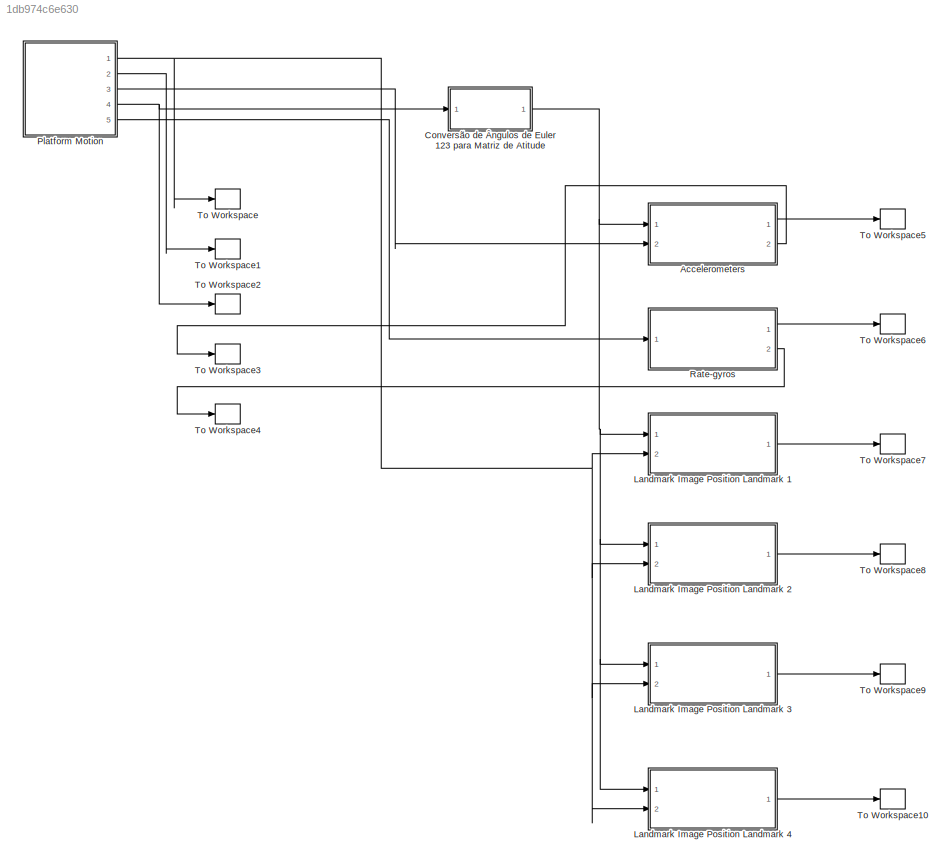
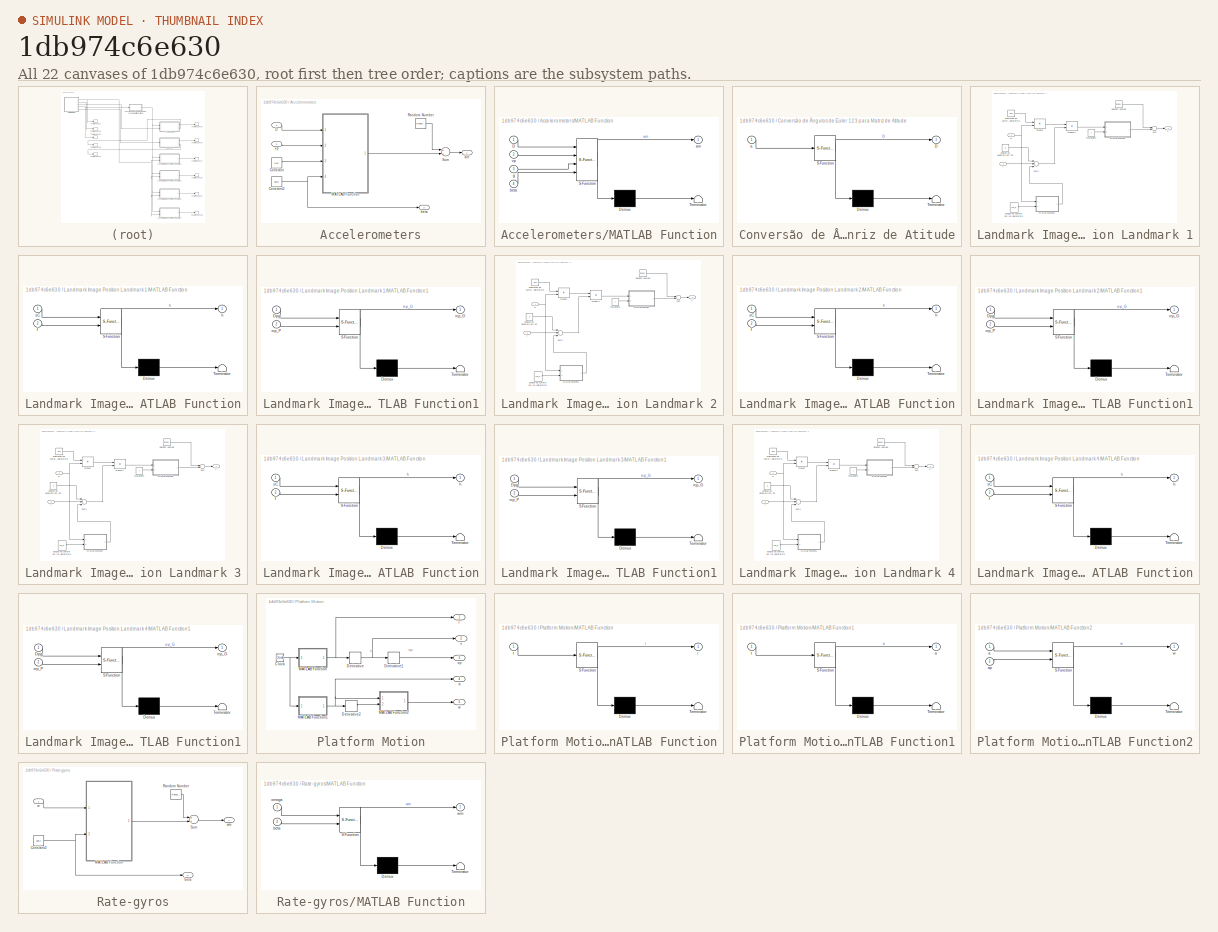
[diagram: thumbnail index - all 22 canvases of the model, root first then tree order]
MODEL slx_1db974c6e630
KIND model
CONFIG AbsTol = auto
CONFIG FixedStep = auto
CONFIG InitFcn = c = clock;\nseed_offset = c(6);\nseed_offset = floor(seed_offset);
CONFIG MaxStep = 1e-1
CONFIG MinStep = auto
CONFIG RelTol = 1e-3
CONFIG SampleTimeConstraint = Unconstrained
CONFIG Solver = ode45
CONFIG SolverMode = Auto
CONFIG SolverName = ode45
CONFIG StartTime = 0.0
CONFIG StopTime = tf
BLOCK [SubSystem] Accelerometers
  Ports = [2, 2]
  RequestExecContextInheritance = off
BLOCK [Constant] Accelerometers/Constant
  Value = 9.81
BLOCK [Constant] Accelerometers/Constant2
  Value = beta
BLOCK [Inport] Accelerometers/D
  IconDisplay = Port number
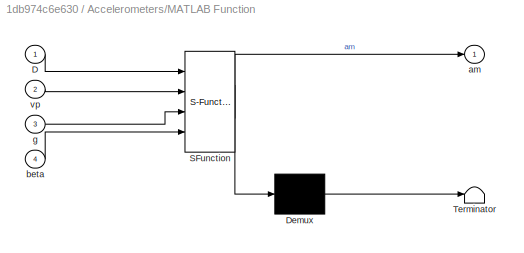
BLOCK [SubSystem] Accelerometers/MATLAB Function
  ErrorFcn = Stateflow.Translate.translate
  PermitHierarchicalResolution = ExplicitOnly
  Ports = [4, 1]
  RequestExecContextInheritance = off
  SFBlockType = MATLAB Function
  TreatAsAtomicUnit = on
BLOCK [Demux] Accelerometers/MATLAB Function/ Demux 
  Outputs = 1
  Ports = [1, 1]
BLOCK [S-Function] Accelerometers/MATLAB Function/ SFunction 
  EnableBusSupport = on
  FunctionName = sf_sfun
  PortCounts = [4 2]
  Ports = [4, 2]
  Tag = Stateflow S-Function plataforma_ep3 10
BLOCK [Terminator] Accelerometers/MATLAB Function/ Terminator 
BLOCK [Inport] Accelerometers/MATLAB Function/D
  IconDisplay = Port number
BLOCK [Outport] Accelerometers/MATLAB Function/am
  IconDisplay = Port number
BLOCK [Inport] Accelerometers/MATLAB Function/beta
  IconDisplay = Port number
  Port = 4
BLOCK [Inport] Accelerometers/MATLAB Function/g
  IconDisplay = Port number
  Port = 3
BLOCK [Inport] Accelerometers/MATLAB Function/vp
  IconDisplay = Port number
  Port = 2
BLOCK [RandomNumber] Accelerometers/Random Number
  Mean = [0 0 0]'
  Seed = seed
  Variance = [sigma^2  sigma^2  sigma^2]'
BLOCK [Sum] Accelerometers/Sum
  InputSameDT = off
  OutDataTypeStr = Inherit: Inherit via internal rule
  Ports = [2, 1]
  SaturateOnIntegerOverflow = off
BLOCK [Outport] Accelerometers/am
  IconDisplay = Port number
BLOCK [Outport] Accelerometers/beta
  IconDisplay = Port number
  Port = 2
BLOCK [Inport] Accelerometers/vp
  IconDisplay = Port number
  Port = 2
BLOCK [SubSystem] Conversão de Ângulos de Euler 123 para Matriz de Atitude
  ErrorFcn = Stateflow.Translate.translate
  PermitHierarchicalResolution = ExplicitOnly
  Ports = [1, 1]
  RequestExecContextInheritance = off
  SFBlockType = MATLAB Function
  TreatAsAtomicUnit = on
BLOCK [Demux] Conversão de Ângulos de Euler 123 para Matriz de Atitude/ Demux 
  Outputs = 1
  Ports = [1, 1]
BLOCK [S-Function] Conversão de Ângulos de Euler 123 para Matriz de Atitude/ SFunction 
  EnableBusSupport = on
  FunctionName = sf_sfun
  PortCounts = [1 2]
  Ports = [1, 2]
  Tag = Stateflow S-Function plataforma_ep3 15
BLOCK [Terminator] Conversão de Ângulos de Euler 123 para Matriz de Atitude/ Terminator 
BLOCK [Outport] Conversão de Ângulos de Euler 123 para Matriz de Atitude/D
  IconDisplay = Port number
BLOCK [Inport] Conversão de Ângulos de Euler 123 para Matriz de Atitude/a
  IconDisplay = Port number
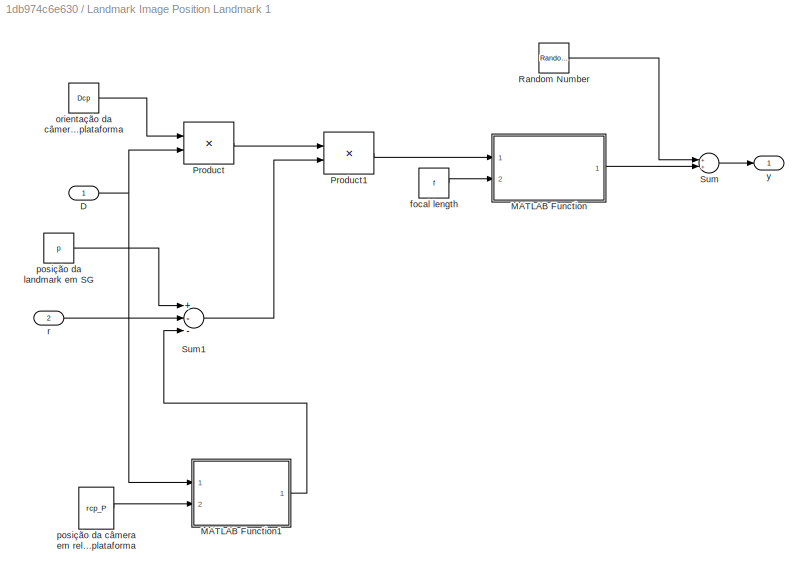
BLOCK [SubSystem] Landmark Image Position Landmark 1
  Ports = [2, 1]
  RequestExecContextInheritance = off
BLOCK [Inport] Landmark Image Position Landmark 1/D
  IconDisplay = Port number
BLOCK [SubSystem] Landmark Image Position Landmark 1/MATLAB Function
  ErrorFcn = Stateflow.Translate.translate
  PermitHierarchicalResolution = ExplicitOnly
  Ports = [2, 1]
  RequestExecContextInheritance = off
  SFBlockType = MATLAB Function
  TreatAsAtomicUnit = on
BLOCK [Demux] Landmark Image Position Landmark 1/MATLAB Function/ Demux 
  Outputs = 1
  Ports = [1, 1]
BLOCK [S-Function] Landmark Image Position Landmark 1/MATLAB Function/ SFunction 
  EnableBusSupport = on
  FunctionName = sf_sfun
  PortCounts = [2 2]
  Ports = [2, 2]
  Tag = Stateflow S-Function plataforma_ep3 12
BLOCK [Terminator] Landmark Image Position Landmark 1/MATLAB Function/ Terminator 
BLOCK [Inport] Landmark Image Position Landmark 1/MATLAB Function/f
  IconDisplay = Port number
  Port = 2
BLOCK [Outport] Landmark Image Position Landmark 1/MATLAB Function/h
  IconDisplay = Port number
BLOCK [Inport] Landmark Image Position Landmark 1/MATLAB Function/sC
  IconDisplay = Port number
BLOCK [SubSystem] Landmark Image Position Landmark 1/MATLAB Function1
  ErrorFcn = Stateflow.Translate.translate
  PermitHierarchicalResolution = ExplicitOnly
  Ports = [2, 1]
  RequestExecContextInheritance = off
  SFBlockType = MATLAB Function
  TreatAsAtomicUnit = on
BLOCK [Demux] Landmark Image Position Landmark 1/MATLAB Function1/ Demux 
  Outputs = 1
  Ports = [1, 1]
BLOCK [S-Function] Landmark Image Position Landmark 1/MATLAB Function1/ SFunction 
  EnableBusSupport = on
  FunctionName = sf_sfun
  PortCounts = [2 2]
  Ports = [2, 2]
  Tag = Stateflow S-Function plataforma_ep3 1
BLOCK [Terminator] Landmark Image Position Landmark 1/MATLAB Function1/ Terminator 
BLOCK [Inport] Landmark Image Position Landmark 1/MATLAB Function1/Dpg
  IconDisplay = Port number
BLOCK [Outport] Landmark Image Position Landmark 1/MATLAB Function1/rcp_G
  IconDisplay = Port number
BLOCK [Inport] Landmark Image Position Landmark 1/MATLAB Function1/rcp_P
  IconDisplay = Port number
  Port = 2
BLOCK [Product] Landmark Image Position Landmark 1/Product
  InputSameDT = off
  Multiplication = Matrix(*)
  OutDataTypeStr = Inherit: Inherit via internal rule
  Ports = [2, 1]
  RndMeth = Floor
  SaturateOnIntegerOverflow = off
BLOCK [Product] Landmark Image Position Landmark 1/Product1
  InputSameDT = off
  Multiplication = Matrix(*)
  OutDataTypeStr = Inherit: Inherit via internal rule
  Ports = [2, 1]
  RndMeth = Floor
  SaturateOnIntegerOverflow = off
BLOCK [RandomNumber] Landmark Image Position Landmark 1/Random Number
  Mean = [0 0]'
  Seed = seed
  Variance = [sigma^2 sigma^2]'
BLOCK [Sum] Landmark Image Position Landmark 1/Sum
  InputSameDT = off
  OutDataTypeStr = Inherit: Inherit via internal rule
  Ports = [2, 1]
  SaturateOnIntegerOverflow = off
BLOCK [Sum] Landmark Image Position Landmark 1/Sum1
  InputSameDT = off
  Inputs = +--
  OutDataTypeStr = Inherit: Inherit via internal rule
  Ports = [3, 1]
  SaturateOnIntegerOverflow = off
BLOCK [Constant] Landmark Image Position Landmark 1/focal length
  Value = f
BLOCK [Constant] Landmark Image Position Landmark 1/orientação da câmera em relação à plataforma
  Value = Dcp
BLOCK [Constant] Landmark Image Position Landmark 1/posição da câmera em relação à plataforma
  Value = rcp_P
BLOCK [Constant] Landmark Image Position Landmark 1/posição da landmark em SG
  Value = p
BLOCK [Inport] Landmark Image Position Landmark 1/r
  IconDisplay = Port number
  Port = 2
BLOCK [Outport] Landmark Image Position Landmark 1/y
  IconDisplay = Port number
BLOCK [SubSystem] Landmark Image Position Landmark 2
  Ports = [2, 1]
  RequestExecContextInheritance = off
BLOCK [Inport] Landmark Image Position Landmark 2/D
  IconDisplay = Port number
BLOCK [SubSystem] Landmark Image Position Landmark 2/MATLAB Function
  ErrorFcn = Stateflow.Translate.translate
  PermitHierarchicalResolution = ExplicitOnly
  Ports = [2, 1]
  RequestExecContextInheritance = off
  SFBlockType = MATLAB Function
  TreatAsAtomicUnit = on
BLOCK [Demux] Landmark Image Position Landmark 2/MATLAB Function/ Demux 
  Outputs = 1
  Ports = [1, 1]
BLOCK [S-Function] Landmark Image Position Landmark 2/MATLAB Function/ SFunction 
  EnableBusSupport = on
  FunctionName = sf_sfun
  PortCounts = [2 2]
  Ports = [2, 2]
  Tag = Stateflow S-Function plataforma_ep3 3
BLOCK [Terminator] Landmark Image Position Landmark 2/MATLAB Function/ Terminator 
BLOCK [Inport] Landmark Image Position Landmark 2/MATLAB Function/f
  IconDisplay = Port number
  Port = 2
BLOCK [Outport] Landmark Image Position Landmark 2/MATLAB Function/h
  IconDisplay = Port number
BLOCK [Inport] Landmark Image Position Landmark 2/MATLAB Function/sC
  IconDisplay = Port number
BLOCK [SubSystem] Landmark Image Position Landmark 2/MATLAB Function1
  ErrorFcn = Stateflow.Translate.translate
  PermitHierarchicalResolution = ExplicitOnly
  Ports = [2, 1]
  RequestExecContextInheritance = off
  SFBlockType = MATLAB Function
  TreatAsAtomicUnit = on
BLOCK [Demux] Landmark Image Position Landmark 2/MATLAB Function1/ Demux 
  Outputs = 1
  Ports = [1, 1]
BLOCK [S-Function] Landmark Image Position Landmark 2/MATLAB Function1/ SFunction 
  EnableBusSupport = on
  FunctionName = sf_sfun
  PortCounts = [2 2]
  Ports = [2, 2]
  Tag = Stateflow S-Function plataforma_ep3 7
BLOCK [Terminator] Landmark Image Position Landmark 2/MATLAB Function1/ Terminator 
BLOCK [Inport] Landmark Image Position Landmark 2/MATLAB Function1/Dpg
  IconDisplay = Port number
BLOCK [Outport] Landmark Image Position Landmark 2/MATLAB Function1/rcp_G
  IconDisplay = Port number
BLOCK [Inport] Landmark Image Position Landmark 2/MATLAB Function1/rcp_P
  IconDisplay = Port number
  Port = 2
BLOCK [Product] Landmark Image Position Landmark 2/Product
  InputSameDT = off
  Multiplication = Matrix(*)
  OutDataTypeStr = Inherit: Inherit via internal rule
  Ports = [2, 1]
  RndMeth = Floor
  SaturateOnIntegerOverflow = off
BLOCK [Product] Landmark Image Position Landmark 2/Product1
  InputSameDT = off
  Multiplication = Matrix(*)
  OutDataTypeStr = Inherit: Inherit via internal rule
  Ports = [2, 1]
  RndMeth = Floor
  SaturateOnIntegerOverflow = off
BLOCK [RandomNumber] Landmark Image Position Landmark 2/Random Number
  Mean = [0 0]'
  Seed = seed
  Variance = [sigma^2 sigma^2]'
BLOCK [Sum] Landmark Image Position Landmark 2/Sum
  InputSameDT = off
  OutDataTypeStr = Inherit: Inherit via internal rule
  Ports = [2, 1]
  SaturateOnIntegerOverflow = off
BLOCK [Sum] Landmark Image Position Landmark 2/Sum1
  InputSameDT = off
  Inputs = +--
  OutDataTypeStr = Inherit: Inherit via internal rule
  Ports = [3, 1]
  SaturateOnIntegerOverflow = off
BLOCK [Constant] Landmark Image Position Landmark 2/focal length
  Value = f
BLOCK [Constant] Landmark Image Position Landmark 2/orientação da câmera em relação à plataforma
  Value = Dcp
BLOCK [Constant] Landmark Image Position Landmark 2/posição da câmera em relação à plataforma
  Value = rcp_P
BLOCK [Constant] Landmark Image Position Landmark 2/posição da landmark em SG
  Value = p
BLOCK [Inport] Landmark Image Position Landmark 2/r
  IconDisplay = Port number
  Port = 2
BLOCK [Outport] Landmark Image Position Landmark 2/y
  IconDisplay = Port number
BLOCK [SubSystem] Landmark Image Position Landmark 3
  Ports = [2, 1]
  RequestExecContextInheritance = off
BLOCK [Inport] Landmark Image Position Landmark 3/D
  IconDisplay = Port number
BLOCK [SubSystem] Landmark Image Position Landmark 3/MATLAB Function
  ErrorFcn = Stateflow.Translate.translate
  PermitHierarchicalResolution = ExplicitOnly
  Ports = [2, 1]
  RequestExecContextInheritance = off
  SFBlockType = MATLAB Function
  TreatAsAtomicUnit = on
BLOCK [Demux] Landmark Image Position Landmark 3/MATLAB Function/ Demux 
  Outputs = 1
  Ports = [1, 1]
BLOCK [S-Function] Landmark Image Position Landmark 3/MATLAB Function/ SFunction 
  EnableBusSupport = on
  FunctionName = sf_sfun
  PortCounts = [2 2]
  Ports = [2, 2]
  Tag = Stateflow S-Function plataforma_ep3 2
BLOCK [Terminator] Landmark Image Position Landmark 3/MATLAB Function/ Terminator 
BLOCK [Inport] Landmark Image Position Landmark 3/MATLAB Function/f
  IconDisplay = Port number
  Port = 2
BLOCK [Outport] Landmark Image Position Landmark 3/MATLAB Function/h
  IconDisplay = Port number
BLOCK [Inport] Landmark Image Position Landmark 3/MATLAB Function/sC
  IconDisplay = Port number
BLOCK [SubSystem] Landmark Image Position Landmark 3/MATLAB Function1
  ErrorFcn = Stateflow.Translate.translate
  PermitHierarchicalResolution = ExplicitOnly
  Ports = [2, 1]
  RequestExecContextInheritance = off
  SFBlockType = MATLAB Function
  TreatAsAtomicUnit = on
BLOCK [Demux] Landmark Image Position Landmark 3/MATLAB Function1/ Demux 
  Outputs = 1
  Ports = [1, 1]
BLOCK [S-Function] Landmark Image Position Landmark 3/MATLAB Function1/ SFunction 
  EnableBusSupport = on
  FunctionName = sf_sfun
  PortCounts = [2 2]
  Ports = [2, 2]
  Tag = Stateflow S-Function plataforma_ep3 9
BLOCK [Terminator] Landmark Image Position Landmark 3/MATLAB Function1/ Terminator 
BLOCK [Inport] Landmark Image Position Landmark 3/MATLAB Function1/Dpg
  IconDisplay = Port number
BLOCK [Outport] Landmark Image Position Landmark 3/MATLAB Function1/rcp_G
  IconDisplay = Port number
BLOCK [Inport] Landmark Image Position Landmark 3/MATLAB Function1/rcp_P
  IconDisplay = Port number
  Port = 2
BLOCK [Product] Landmark Image Position Landmark 3/Product
  InputSameDT = off
  Multiplication = Matrix(*)
  OutDataTypeStr = Inherit: Inherit via internal rule
  Ports = [2, 1]
  RndMeth = Floor
  SaturateOnIntegerOverflow = off
BLOCK [Product] Landmark Image Position Landmark 3/Product1
  InputSameDT = off
  Multiplication = Matrix(*)
  OutDataTypeStr = Inherit: Inherit via internal rule
  Ports = [2, 1]
  RndMeth = Floor
  SaturateOnIntegerOverflow = off
BLOCK [RandomNumber] Landmark Image Position Landmark 3/Random Number
  Mean = [0 0]'
  Seed = seed
  Variance = [sigma^2 sigma^2]'
BLOCK [Sum] Landmark Image Position Landmark 3/Sum
  InputSameDT = off
  OutDataTypeStr = Inherit: Inherit via internal rule
  Ports = [2, 1]
  SaturateOnIntegerOverflow = off
BLOCK [Sum] Landmark Image Position Landmark 3/Sum1
  InputSameDT = off
  Inputs = +--
  OutDataTypeStr = Inherit: Inherit via internal rule
  Ports = [3, 1]
  SaturateOnIntegerOverflow = off
BLOCK [Constant] Landmark Image Position Landmark 3/focal length
  Value = f
BLOCK [Constant] Landmark Image Position Landmark 3/orientação da câmera em relação à plataforma
  Value = Dcp
BLOCK [Constant] Landmark Image Position Landmark 3/posição da câmera em relação à plataforma
  Value = rcp_P
BLOCK [Constant] Landmark Image Position Landmark 3/posição da landmark em SG
  Value = p
BLOCK [Inport] Landmark Image Position Landmark 3/r
  IconDisplay = Port number
  Port = 2
BLOCK [Outport] Landmark Image Position Landmark 3/y
  IconDisplay = Port number
BLOCK [SubSystem] Landmark Image Position Landmark 4
  Ports = [2, 1]
  RequestExecContextInheritance = off
BLOCK [Inport] Landmark Image Position Landmark 4/D
  IconDisplay = Port number
BLOCK [SubSystem] Landmark Image Position Landmark 4/MATLAB Function
  ErrorFcn = Stateflow.Translate.translate
  PermitHierarchicalResolution = ExplicitOnly
  Ports = [2, 1]
  RequestExecContextInheritance = off
  SFBlockType = MATLAB Function
  TreatAsAtomicUnit = on
BLOCK [Demux] Landmark Image Position Landmark 4/MATLAB Function/ Demux 
  Outputs = 1
  Ports = [1, 1]
BLOCK [S-Function] Landmark Image Position Landmark 4/MATLAB Function/ SFunction 
  EnableBusSupport = on
  FunctionName = sf_sfun
  PortCounts = [2 2]
  Ports = [2, 2]
  Tag = Stateflow S-Function plataforma_ep3 13
BLOCK [Terminator] Landmark Image Position Landmark 4/MATLAB Function/ Terminator 
BLOCK [Inport] Landmark Image Position Landmark 4/MATLAB Function/f
  IconDisplay = Port number
  Port = 2
BLOCK [Outport] Landmark Image Position Landmark 4/MATLAB Function/h
  IconDisplay = Port number
BLOCK [Inport] Landmark Image Position Landmark 4/MATLAB Function/sC
  IconDisplay = Port number
BLOCK [SubSystem] Landmark Image Position Landmark 4/MATLAB Function1
  ErrorFcn = Stateflow.Translate.translate
  PermitHierarchicalResolution = ExplicitOnly
  Ports = [2, 1]
  RequestExecContextInheritance = off
  SFBlockType = MATLAB Function
  TreatAsAtomicUnit = on
BLOCK [Demux] Landmark Image Position Landmark 4/MATLAB Function1/ Demux 
  Outputs = 1
  Ports = [1, 1]
BLOCK [S-Function] Landmark Image Position Landmark 4/MATLAB Function1/ SFunction 
  EnableBusSupport = on
  FunctionName = sf_sfun
  PortCounts = [2 2]
  Ports = [2, 2]
  Tag = Stateflow S-Function plataforma_ep3 14
BLOCK [Terminator] Landmark Image Position Landmark 4/MATLAB Function1/ Terminator 
BLOCK [Inport] Landmark Image Position Landmark 4/MATLAB Function1/Dpg
  IconDisplay = Port number
BLOCK [Outport] Landmark Image Position Landmark 4/MATLAB Function1/rcp_G
  IconDisplay = Port number
BLOCK [Inport] Landmark Image Position Landmark 4/MATLAB Function1/rcp_P
  IconDisplay = Port number
  Port = 2
BLOCK [Product] Landmark Image Position Landmark 4/Product
  InputSameDT = off
  Multiplication = Matrix(*)
  OutDataTypeStr = Inherit: Inherit via internal rule
  Ports = [2, 1]
  RndMeth = Floor
  SaturateOnIntegerOverflow = off
BLOCK [Product] Landmark Image Position Landmark 4/Product1
  InputSameDT = off
  Multiplication = Matrix(*)
  OutDataTypeStr = Inherit: Inherit via internal rule
  Ports = [2, 1]
  RndMeth = Floor
  SaturateOnIntegerOverflow = off
BLOCK [RandomNumber] Landmark Image Position Landmark 4/Random Number
  Mean = [0 0]'
  Seed = seed
  Variance = [sigma^2 sigma^2]'
BLOCK [Sum] Landmark Image Position Landmark 4/Sum
  InputSameDT = off
  OutDataTypeStr = Inherit: Inherit via internal rule
  Ports = [2, 1]
  SaturateOnIntegerOverflow = off
BLOCK [Sum] Landmark Image Position Landmark 4/Sum1
  InputSameDT = off
  Inputs = +--
  OutDataTypeStr = Inherit: Inherit via internal rule
  Ports = [3, 1]
  SaturateOnIntegerOverflow = off
BLOCK [Constant] Landmark Image Position Landmark 4/focal length
  Value = f
BLOCK [Constant] Landmark Image Position Landmark 4/orientação da câmera em relação à plataforma
  Value = Dcp
BLOCK [Constant] Landmark Image Position Landmark 4/posição da câmera em relação à plataforma
  Value = rcp_P
BLOCK [Constant] Landmark Image Position Landmark 4/posição da landmark em SG
  Value = p
BLOCK [Inport] Landmark Image Position Landmark 4/r
  IconDisplay = Port number
  Port = 2
BLOCK [Outport] Landmark Image Position Landmark 4/y
  IconDisplay = Port number
BLOCK [SubSystem] Platform Motion
  Ports = [0, 5]
  RequestExecContextInheritance = off
BLOCK [Clock] Platform Motion/Clock
BLOCK [Derivative] Platform Motion/Derivative
BLOCK [Derivative] Platform Motion/Derivative1
BLOCK [Derivative] Platform Motion/Derivative2
BLOCK [SubSystem] Platform Motion/MATLAB Function
  ErrorFcn = Stateflow.Translate.translate
  PermitHierarchicalResolution = ExplicitOnly
  Ports = [1, 1]
  RequestExecContextInheritance = off
  SFBlockType = MATLAB Function
  TreatAsAtomicUnit = on
BLOCK [Demux] Platform Motion/MATLAB Function/ Demux 
  Outputs = 1
  Ports = [1, 1]
BLOCK [S-Function] Platform Motion/MATLAB Function/ SFunction 
  EnableBusSupport = on
  FunctionName = sf_sfun
  PortCounts = [1 2]
  Ports = [1, 2]
  Tag = Stateflow S-Function plataforma_ep3 4
BLOCK [Terminator] Platform Motion/MATLAB Function/ Terminator 
BLOCK [Outport] Platform Motion/MATLAB Function/r
  IconDisplay = Port number
BLOCK [Inport] Platform Motion/MATLAB Function/t
  IconDisplay = Port number
BLOCK [SubSystem] Platform Motion/MATLAB Function1
  ErrorFcn = Stateflow.Translate.translate
  PermitHierarchicalResolution = ExplicitOnly
  Ports = [1, 1]
  RequestExecContextInheritance = off
  SFBlockType = MATLAB Function
  TreatAsAtomicUnit = on
BLOCK [Demux] Platform Motion/MATLAB Function1/ Demux 
  Outputs = 1
  Ports = [1, 1]
BLOCK [S-Function] Platform Motion/MATLAB Function1/ SFunction 
  EnableBusSupport = on
  FunctionName = sf_sfun
  PortCounts = [1 2]
  Ports = [1, 2]
  Tag = Stateflow S-Function plataforma_ep3 5
BLOCK [Terminator] Platform Motion/MATLAB Function1/ Terminator 
BLOCK [Outport] Platform Motion/MATLAB Function1/a
  IconDisplay = Port number
BLOCK [Inport] Platform Motion/MATLAB Function1/t
  IconDisplay = Port number
BLOCK [SubSystem] Platform Motion/MATLAB Function2
  ErrorFcn = Stateflow.Translate.translate
  PermitHierarchicalResolution = ExplicitOnly
  Ports = [2, 1]
  RequestExecContextInheritance = off
  SFBlockType = MATLAB Function
  TreatAsAtomicUnit = on
BLOCK [Demux] Platform Motion/MATLAB Function2/ Demux 
  Outputs = 1
  Ports = [1, 1]
BLOCK [S-Function] Platform Motion/MATLAB Function2/ SFunction 
  EnableBusSupport = on
  FunctionName = sf_sfun
  PortCounts = [2 2]
  Ports = [2, 2]
  Tag = Stateflow S-Function plataforma_ep3 8
BLOCK [Terminator] Platform Motion/MATLAB Function2/ Terminator 
BLOCK [Inport] Platform Motion/MATLAB Function2/a
  IconDisplay = Port number
BLOCK [Inport] Platform Motion/MATLAB Function2/ap
  IconDisplay = Port number
  Port = 2
BLOCK [Outport] Platform Motion/MATLAB Function2/w
  IconDisplay = Port number
BLOCK [Outport] Platform Motion/a
  IconDisplay = Port number
  Port = 4
BLOCK [Outport] Platform Motion/r
  IconDisplay = Port number
BLOCK [Outport] Platform Motion/v
  IconDisplay = Port number
  Port = 2
BLOCK [Outport] Platform Motion/vp
  IconDisplay = Port number
  Port = 3
BLOCK [Outport] Platform Motion/w
  IconDisplay = Port number
  Port = 5
BLOCK [SubSystem] Rate-gyros
  Ports = [1, 2]
  RequestExecContextInheritance = off
BLOCK [Constant] Rate-gyros/Constant2
  Value = beta
BLOCK [SubSystem] Rate-gyros/MATLAB Function
  ErrorFcn = Stateflow.Translate.translate
  PermitHierarchicalResolution = ExplicitOnly
  Ports = [2, 1]
  RequestExecContextInheritance = off
  SFBlockType = MATLAB Function
  TreatAsAtomicUnit = on
BLOCK [Demux] Rate-gyros/MATLAB Function/ Demux 
  Outputs = 1
  Ports = [1, 1]
BLOCK [S-Function] Rate-gyros/MATLAB Function/ SFunction 
  EnableBusSupport = on
  FunctionName = sf_sfun
  PortCounts = [2 2]
  Ports = [2, 2]
  Tag = Stateflow S-Function plataforma_ep3 11
BLOCK [Terminator] Rate-gyros/MATLAB Function/ Terminator 
BLOCK [Inport] Rate-gyros/MATLAB Function/beta
  IconDisplay = Port number
  Port = 2
BLOCK [Inport] Rate-gyros/MATLAB Function/omega
  IconDisplay = Port number
BLOCK [Outport] Rate-gyros/MATLAB Function/wm
  IconDisplay = Port number
BLOCK [RandomNumber] Rate-gyros/Random Number
  Mean = [0 0 0]'
  Seed = seed
  Variance = [sigma^2  sigma^2  sigma^2]'
BLOCK [Sum] Rate-gyros/Sum
  InputSameDT = off
  OutDataTypeStr = Inherit: Inherit via internal rule
  Ports = [2, 1]
  SaturateOnIntegerOverflow = off
BLOCK [Outport] Rate-gyros/beta
  IconDisplay = Port number
  Port = 2
BLOCK [Inport] Rate-gyros/w
  IconDisplay = Port number
BLOCK [Outport] Rate-gyros/wm
  IconDisplay = Port number
BLOCK [ToWorkspace] To Workspace
  FixptAsFi = on
  MaxDataPoints = inf
  Ports = [1]
  SampleTime = Ts
  Save2DSignal = 3-D array (concatenate along third dimension)
  SaveFormat = Structure With Time
  VariableName = r
BLOCK [ToWorkspace] To Workspace1
  FixptAsFi = on
  MaxDataPoints = inf
  Ports = [1]
  SampleTime = Ts
  Save2DSignal = 3-D array (concatenate along third dimension)
  SaveFormat = Structure With Time
  VariableName = v
BLOCK [ToWorkspace] To Workspace10
  FixptAsFi = on
  MaxDataPoints = inf
  Ports = [1]
  SampleTime = Ts
  Save2DSignal = 3-D array (concatenate along third dimension)
  SaveFormat = Structure With Time
  VariableName = y4
BLOCK [ToWorkspace] To Workspace2
  FixptAsFi = on
  MaxDataPoints = inf
  Ports = [1]
  SampleTime = Ts
  Save2DSignal = 3-D array (concatenate along third dimension)
  SaveFormat = Structure With Time
  VariableName = a
BLOCK [ToWorkspace] To Workspace3
  FixptAsFi = on
  MaxDataPoints = inf
  Ports = [1]
  SampleTime = Ts
  Save2DSignal = 3-D array (concatenate along third dimension)
  SaveFormat = Structure With Time
  VariableName = ba
BLOCK [ToWorkspace] To Workspace4
  FixptAsFi = on
  MaxDataPoints = inf
  Ports = [1]
  SampleTime = Ts
  Save2DSignal = 3-D array (concatenate along third dimension)
  SaveFormat = Structure With Time
  VariableName = bg
BLOCK [ToWorkspace] To Workspace5
  FixptAsFi = on
  MaxDataPoints = inf
  Ports = [1]
  SampleTime = Ts
  Save2DSignal = 3-D array (concatenate along third dimension)
  SaveFormat = Structure With Time
  VariableName = am
BLOCK [ToWorkspace] To Workspace6
  FixptAsFi = on
  MaxDataPoints = inf
  Ports = [1]
  SampleTime = Ts
  Save2DSignal = 3-D array (concatenate along third dimension)
  SaveFormat = Structure With Time
  VariableName = wm
BLOCK [ToWorkspace] To Workspace7
  FixptAsFi = on
  MaxDataPoints = inf
  Ports = [1]
  SampleTime = Ts
  Save2DSignal = 3-D array (concatenate along third dimension)
  SaveFormat = Structure With Time
  VariableName = y1
BLOCK [ToWorkspace] To Workspace8
  FixptAsFi = on
  MaxDataPoints = inf
  Ports = [1]
  SampleTime = Ts
  Save2DSignal = 3-D array (concatenate along third dimension)
  SaveFormat = Structure With Time
  VariableName = y2
BLOCK [ToWorkspace] To Workspace9
  FixptAsFi = on
  MaxDataPoints = inf
  Ports = [1]
  SampleTime = Ts
  Save2DSignal = 3-D array (concatenate along third dimension)
  SaveFormat = Structure With Time
  VariableName = y3
ANNOTATION Platform Motion: v
ANNOTATION Platform Motion: vp
NET Accelerometers/Constant2:1 -> Accelerometers/MATLAB Function:4, Accelerometers/beta:1
LINE Accelerometers/Constant:1 -> Accelerometers/MATLAB Function:3
LINE Accelerometers/D:1 -> Accelerometers/MATLAB Function:1
LINE Accelerometers/MATLAB Function:1 -> Accelerometers/Sum:2
LINE Accelerometers/Random Number:1 -> Accelerometers/Sum:1
LINE Accelerometers/Sum:1 -> Accelerometers/am:1
LINE Accelerometers/vp:1 -> Accelerometers/MATLAB Function:2
LINE Accelerometers:1 -> To Workspace5:1
LINE Accelerometers:2 -> To Workspace3:1
NET Conversão de Ângulos de Euler 123 para Matriz de Atitude:1 -> Accelerometers:1, Landmark Image Position Landmark 1:1, Landmark Image Position Landmark 2:1, Landmark Image Position Landmark 3:1, Landmark Image Position Landmark 4:1
NET Landmark Image Position Landmark 1/D:1 -> Landmark Image Position Landmark 1/MATLAB Function1:1, Landmark Image Position Landmark 1/Product:2
LINE Landmark Image Position Landmark 1/MATLAB Function1:1 -> Landmark Image Position Landmark 1/Sum1:3
LINE Landmark Image Position Landmark 1/MATLAB Function:1 -> Landmark Image Position Landmark 1/Sum:2
LINE Landmark Image Position Landmark 1/Product1:1 -> Landmark Image Position Landmark 1/MATLAB Function:1
LINE Landmark Image Position Landmark 1/Product:1 -> Landmark Image Position Landmark 1/Product1:1
LINE Landmark Image Position Landmark 1/Random Number:1 -> Landmark Image Position Landmark 1/Sum:1
LINE Landmark Image Position Landmark 1/Sum1:1 -> Landmark Image Position Landmark 1/Product1:2
LINE Landmark Image Position Landmark 1/Sum:1 -> Landmark Image Position Landmark 1/y:1
LINE Landmark Image Position Landmark 1/focal length:1 -> Landmark Image Position Landmark 1/MATLAB Function:2
LINE Landmark Image Position Landmark 1/orientação da câmera em relação à plataforma:1 -> Landmark Image Position Landmark 1/Product:1
LINE Landmark Image Position Landmark 1/posição da câmera em relação à plataforma:1 -> Landmark Image Position Landmark 1/MATLAB Function1:2
LINE Landmark Image Position Landmark 1/posição da landmark em SG:1 -> Landmark Image Position Landmark 1/Sum1:1
LINE Landmark Image Position Landmark 1/r:1 -> Landmark Image Position Landmark 1/Sum1:2
LINE Landmark Image Position Landmark 1:1 -> To Workspace7:1
NET Landmark Image Position Landmark 2/D:1 -> Landmark Image Position Landmark 2/MATLAB Function1:1, Landmark Image Position Landmark 2/Product:2
LINE Landmark Image Position Landmark 2/MATLAB Function1:1 -> Landmark Image Position Landmark 2/Sum1:3
LINE Landmark Image Position Landmark 2/MATLAB Function:1 -> Landmark Image Position Landmark 2/Sum:2
LINE Landmark Image Position Landmark 2/Product1:1 -> Landmark Image Position Landmark 2/MATLAB Function:1
LINE Landmark Image Position Landmark 2/Product:1 -> Landmark Image Position Landmark 2/Product1:1
LINE Landmark Image Position Landmark 2/Random Number:1 -> Landmark Image Position Landmark 2/Sum:1
LINE Landmark Image Position Landmark 2/Sum1:1 -> Landmark Image Position Landmark 2/Product1:2
LINE Landmark Image Position Landmark 2/Sum:1 -> Landmark Image Position Landmark 2/y:1
LINE Landmark Image Position Landmark 2/focal length:1 -> Landmark Image Position Landmark 2/MATLAB Function:2
LINE Landmark Image Position Landmark 2/orientação da câmera em relação à plataforma:1 -> Landmark Image Position Landmark 2/Product:1
LINE Landmark Image Position Landmark 2/posição da câmera em relação à plataforma:1 -> Landmark Image Position Landmark 2/MATLAB Function1:2
LINE Landmark Image Position Landmark 2/posição da landmark em SG:1 -> Landmark Image Position Landmark 2/Sum1:1
LINE Landmark Image Position Landmark 2/r:1 -> Landmark Image Position Landmark 2/Sum1:2
LINE Landmark Image Position Landmark 2:1 -> To Workspace8:1
NET Landmark Image Position Landmark 3/D:1 -> Landmark Image Position Landmark 3/MATLAB Function1:1, Landmark Image Position Landmark 3/Product:2
LINE Landmark Image Position Landmark 3/MATLAB Function1:1 -> Landmark Image Position Landmark 3/Sum1:3
LINE Landmark Image Position Landmark 3/MATLAB Function:1 -> Landmark Image Position Landmark 3/Sum:2
LINE Landmark Image Position Landmark 3/Product1:1 -> Landmark Image Position Landmark 3/MATLAB Function:1
LINE Landmark Image Position Landmark 3/Product:1 -> Landmark Image Position Landmark 3/Product1:1
LINE Landmark Image Position Landmark 3/Random Number:1 -> Landmark Image Position Landmark 3/Sum:1
LINE Landmark Image Position Landmark 3/Sum1:1 -> Landmark Image Position Landmark 3/Product1:2
LINE Landmark Image Position Landmark 3/Sum:1 -> Landmark Image Position Landmark 3/y:1
LINE Landmark Image Position Landmark 3/focal length:1 -> Landmark Image Position Landmark 3/MATLAB Function:2
LINE Landmark Image Position Landmark 3/orientação da câmera em relação à plataforma:1 -> Landmark Image Position Landmark 3/Product:1
LINE Landmark Image Position Landmark 3/posição da câmera em relação à plataforma:1 -> Landmark Image Position Landmark 3/MATLAB Function1:2
LINE Landmark Image Position Landmark 3/posição da landmark em SG:1 -> Landmark Image Position Landmark 3/Sum1:1
LINE Landmark Image Position Landmark 3/r:1 -> Landmark Image Position Landmark 3/Sum1:2
LINE Landmark Image Position Landmark 3:1 -> To Workspace9:1
NET Landmark Image Position Landmark 4/D:1 -> Landmark Image Position Landmark 4/MATLAB Function1:1, Landmark Image Position Landmark 4/Product:2
LINE Landmark Image Position Landmark 4/MATLAB Function1:1 -> Landmark Image Position Landmark 4/Sum1:3
LINE Landmark Image Position Landmark 4/MATLAB Function:1 -> Landmark Image Position Landmark 4/Sum:2
LINE Landmark Image Position Landmark 4/Product1:1 -> Landmark Image Position Landmark 4/MATLAB Function:1
LINE Landmark Image Position Landmark 4/Product:1 -> Landmark Image Position Landmark 4/Product1:1
LINE Landmark Image Position Landmark 4/Random Number:1 -> Landmark Image Position Landmark 4/Sum:1
LINE Landmark Image Position Landmark 4/Sum1:1 -> Landmark Image Position Landmark 4/Product1:2
LINE Landmark Image Position Landmark 4/Sum:1 -> Landmark Image Position Landmark 4/y:1
LINE Landmark Image Position Landmark 4/focal length:1 -> Landmark Image Position Landmark 4/MATLAB Function:2
LINE Landmark Image Position Landmark 4/orientação da câmera em relação à plataforma:1 -> Landmark Image Position Landmark 4/Product:1
LINE Landmark Image Position Landmark 4/posição da câmera em relação à plataforma:1 -> Landmark Image Position Landmark 4/MATLAB Function1:2
LINE Landmark Image Position Landmark 4/posição da landmark em SG:1 -> Landmark Image Position Landmark 4/Sum1:1
LINE Landmark Image Position Landmark 4/r:1 -> Landmark Image Position Landmark 4/Sum1:2
LINE Landmark Image Position Landmark 4:1 -> To Workspace10:1
NET Platform Motion/Clock:1 -> Platform Motion/MATLAB Function1:1, Platform Motion/MATLAB Function:1
LINE Platform Motion/Derivative1:1 -> Platform Motion/vp:1
LINE Platform Motion/Derivative2:1 -> Platform Motion/MATLAB Function2:2
NET Platform Motion/Derivative:1 -> Platform Motion/Derivative1:1, Platform Motion/v:1
NET Platform Motion/MATLAB Function1:1 -> Platform Motion/Derivative2:1, Platform Motion/MATLAB Function2:1, Platform Motion/a:1
LINE Platform Motion/MATLAB Function2:1 -> Platform Motion/w:1
NET Platform Motion/MATLAB Function:1 -> Platform Motion/Derivative:1, Platform Motion/r:1
NET Platform Motion:1 -> Landmark Image Position Landmark 1:2, Landmark Image Position Landmark 2:2, Landmark Image Position Landmark 3:2, Landmark Image Position Landmark 4:2, To Workspace:1
LINE Platform Motion:2 -> To Workspace1:1
LINE Platform Motion:3 -> Accelerometers:2
NET Platform Motion:4 -> Conversão de Ângulos de Euler 123 para Matriz de Atitude:1, To Workspace2:1
LINE Platform Motion:5 -> Rate-gyros:1
NET Rate-gyros/Constant2:1 -> Rate-gyros/MATLAB Function:2, Rate-gyros/beta:1
LINE Rate-gyros/MATLAB Function:1 -> Rate-gyros/Sum:2
LINE Rate-gyros/Random Number:1 -> Rate-gyros/Sum:1
LINE Rate-gyros/Sum:1 -> Rate-gyros/wm:1
LINE Rate-gyros/w:1 -> Rate-gyros/MATLAB Function:1
LINE Rate-gyros:1 -> To Workspace6:1
LINE Rate-gyros:2 -> To Workspace4:1
note: NET lines group one-source signal fan-out (src -> all destinations, sorted); 1:1 wires keep LINE
CHART Landmark Image Position
Landmark 1/MATLAB Function1 states=1 transitions=1
  STATE_LABEL 'eML_blk_kernel()'
  STATE_LABEL "SCRIPT:\nfunction rcp_G = fcn(Dpg,rcp_P)\n%#codegen\n\nrcp_G = Dpg'*rcp_P;\n\n"
CHART Landmark Image Position
Landmark 3/MATLAB Function states=1 transitions=1
  STATE_LABEL 'eML_blk_kernel()'
  STATE_LABEL 'SCRIPT:\nfunction h = fcn(sC,f)\n%#codegen\n\nh = f/sC(3)*[sC(1);sC(2)];\n\n'
CHART Landmark Image Position
Landmark 2/MATLAB Function states=1 transitions=1
  STATE_LABEL 'eML_blk_kernel()'
  STATE_LABEL 'SCRIPT:\nfunction h = fcn(sC,f)\n%#codegen\n\nh = f/sC(3)*[sC(1);sC(2)];\n\n'
CHART Platform Motion/MATLAB Function states=1 transitions=1
  STATE_LABEL 'eML_blk_kernel()'
  STATE_LABEL 'SCRIPT:\nfunction r = position(t)\n%#codegen\n\n% trajectória de posição, em S_G, em metros\n\nAx = 5;\nAy = 5;\nAz = 1;\nh = 20;\n\n\nr = [Ax*sin(2*pi/20*t);\n     Ay*cos(2*pi/20*t);\n     Az*sin(2*pi/4*t) + h];\n \n'
CHART Platform Motion/MATLAB Function1 states=1 transitions=1
  STATE_LABEL 'eML_blk_kernel()'
  STATE_LABEL 'SCRIPT:\nfunction a = attitude(t)\n%#codegen\n\n% trajectória de atitude de S_P em relação a S_G, em rad\n\nAfi = pi/18;\nAteta = pi/18;\nApsi = pi/18;\n\na = [Afi*sin(2*pi/2*t);\n     Ateta*cos(2*pi/2*t);\n     Apsi*sin(2*pi/8*t)];\n\n     \n '
CHART Landmark Image Position
Landmark 2/MATLAB Function1 states=1 transitions=1
  STATE_LABEL 'eML_blk_kernel()'
  STATE_LABEL "SCRIPT:\nfunction rcp_G = fcn(Dpg,rcp_P)\n%#codegen\n\nrcp_G = Dpg'*rcp_P;\n\n"
CHART Platform Motion/MATLAB Function2 states=1 transitions=1
  STATE_LABEL 'eML_blk_kernel()'
  STATE_LABEL 'SCRIPT:\nfunction w = angvel(a,ap)\n%#codegen\n\n% velocidade angular, em S_P, em rad/s\n\n\nca2 = cos(a(2));\nca3 = cos(a(3));\nsa2 = sin(a(2));\nsa3 = sin(a(3));\n\nAinv = [ca2*ca3, sa3, 0;\n        -ca2*sa3, ca3, 0;\n         sa2, 0, 1];\n     \nw = Ainv*ap;    '
CHART Landmark Image Position
Landmark 3/MATLAB Function1 states=1 transitions=1
  STATE_LABEL 'eML_blk_kernel()'
  STATE_LABEL "SCRIPT:\nfunction rcp_G = fcn(Dpg,rcp_P)\n%#codegen\n\nrcp_G = Dpg'*rcp_P;\n\n"
CHART Accelerometers/MATLAB Function states=1 transitions=1
  STATE_LABEL 'eML_blk_kernel()'
  STATE_LABEL 'SCRIPT:\nfunction am = fcn(D,vp,g,beta)\n%#codegen\n\ng_G = [0;0;-g];\n\nam = D*(vp - g_G) + beta;\n'
CHART Rate-gyros/MATLAB Function states=1 transitions=1
  STATE_LABEL 'eML_blk_kernel()'
  STATE_LABEL 'SCRIPT:\nfunction wm = fcn(omega,beta)\n%#codegen\n\nwm = omega + beta;\n'
CHART Landmark Image Position
Landmark 1/MATLAB Function states=1 transitions=1
  STATE_LABEL 'eML_blk_kernel()'
  STATE_LABEL 'SCRIPT:\nfunction h = fcn(sC,f)\n%#codegen\n\nh = f/sC(3)*[sC(1);sC(2)];\n\n'
CHART Landmark Image Position
Landmark 4/MATLAB Function states=1 transitions=1
  STATE_LABEL 'eML_blk_kernel()'
  STATE_LABEL 'SCRIPT:\nfunction h = fcn(sC,f)\n%#codegen\n\nh = f/sC(3)*[sC(1);sC(2)];\n\n'
CHART Landmark Image Position
Landmark 4/MATLAB Function1 states=1 transitions=1
  STATE_LABEL 'eML_blk_kernel()'
  STATE_LABEL "SCRIPT:\nfunction rcp_G = fcn(Dpg,rcp_P)\n%#codegen\n\nrcp_G = Dpg'*rcp_P;\n\n"
CHART Conversão de Ângulos de Euler 123
para Matriz de Atitude states=1 transitions=1
  STATE_LABEL 'eML_blk_kernel()'
  STATE_LABEL 'SCRIPT:\nfunction D  = a1232D(a)\n\nphi = a(1);\ntheta = a(2);\npsi = a(3);\n\n% conversão de ângulos de Euler 123 para matriz de atitude D\n\nD = [cos(psi)*cos(theta), cos(psi)*sin(theta)*sin(phi)+sin(psi)*cos(phi), -cos(psi)*sin(theta)*cos(phi)+sin(psi)*sin(phi);\n    -sin(psi)*cos(theta), -sin(psi)*sin(theta)*sin(phi)+cos(psi)*cos(phi), sin(psi)*sin(theta)*cos(phi)+cos(psi)*sin(phi);\n    sin(theta) , -co...<+41ch>'
